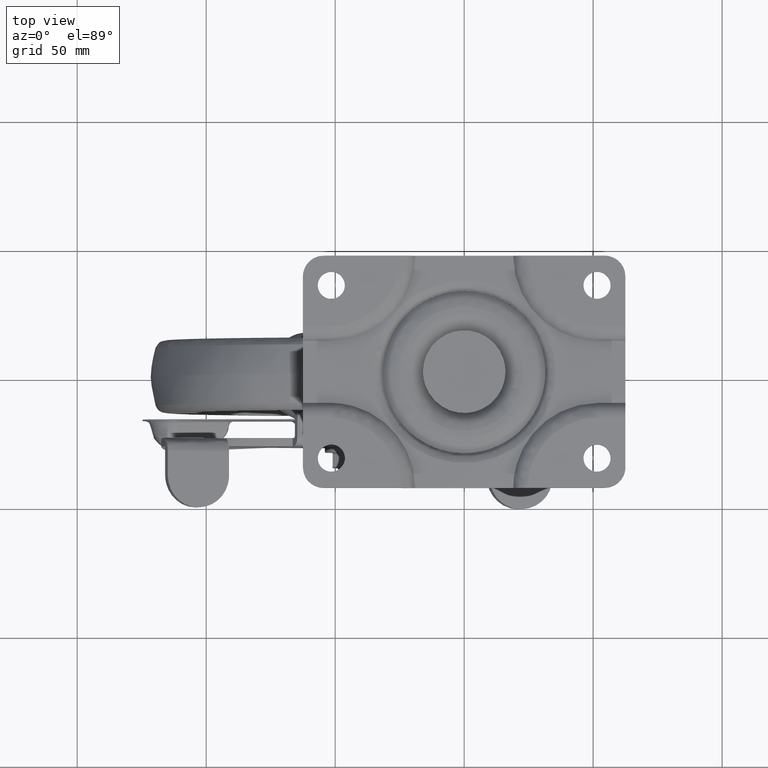
[diagram: clean part render]
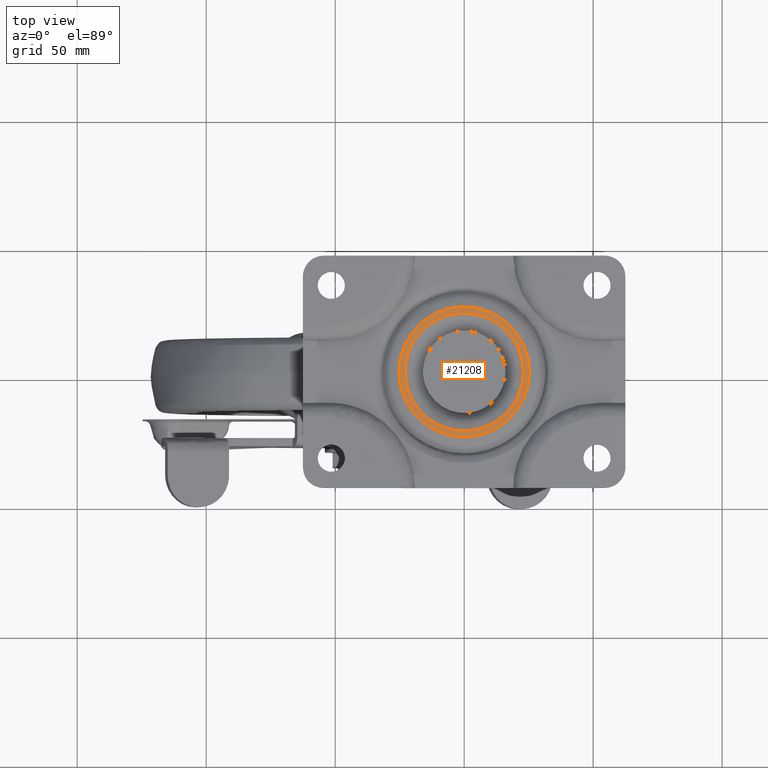
[diagram: same view with one face highlighted and labeled with its STEP entity id]
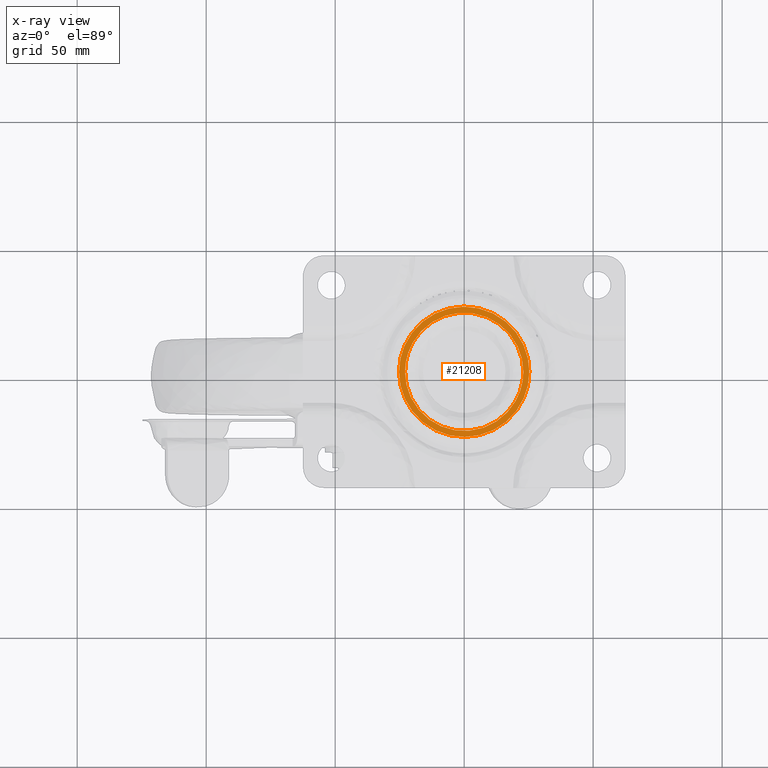
[diagram: x-ray of the same camera — body ghosted, the highlighted face saturated]
A machine part, top view. The second image highlights one B-rep face of the part: STEP entity #21208.
The next image is the same camera in x-ray: the body ghosted, the highlighted face saturated — about 0% of this face is hidden behind the body in this view.
In plain terms, the highlighted face is a freeform B-spline surface patch.
Its self-contained STEP definition (entity closure, byte-faithful):
#20891=CARTESIAN_POINT('',(-19.952071971651961,11.297352623015909,-4.000000000000002));
#20892=VERTEX_POINT('',#20891);
#20906=CARTESIAN_POINT('',(-22.928525230275600,0.0,-4.0));
#20907=VERTEX_POINT('',#20906);
#20908=CARTESIAN_POINT('',(-22.928525230275600,0.0,-4.0));
#20909=CARTESIAN_POINT('',(-22.928525228864320,6.040771445577980,-4.000000000000002));
#20910=CARTESIAN_POINT('',(-19.952071971651961,11.297352623015911,-4.000000000000002));
#20918=(BOUNDED_CURVE()B_SPLINE_CURVE(2,(#20908,#20909,#20910),.UNSPECIFIED.,.F.,.U.)B_SPLINE_CURVE_WITH_KNOTS((3,3),(0.0,0.083983638488254),.UNSPECIFIED.)CURVE()GEOMETRIC_REPRESENTATION_ITEM()RATIONAL_B_SPLINE_CURVE((1.0,0.901607047182039,0.869321279798122))REPRESENTATION_ITEM(''));
#20919=EDGE_CURVE('',#20907,#20892,#20918,.T.);
#20921=CARTESIAN_POINT('',(19.951427971651761,-11.297352623015909,-4.000000000000002));
#20922=VERTEX_POINT('',#20921);
#20923=CARTESIAN_POINT('',(19.951427971651761,-11.297352623015909,-4.000000000000002));
#20924=CARTESIAN_POINT('',(19.371963091589500,-12.320834616732011,-4.000000000000003));
#20925=CARTESIAN_POINT('',(18.011181796522209,-14.343590667266650,-4.000000000000001));
#20926=CARTESIAN_POINT('',(15.863417300361920,-16.643639983189740,-4.000000000000005));
#20927=CARTESIAN_POINT('',(13.384162495088781,-18.695529682762189,-4.000000000000003));
#20928=CARTESIAN_POINT('',(10.789694463954660,-20.333497120946429,-4.000000000000020));
#20929=CARTESIAN_POINT('',(7.544257862254762,-21.741111215291308,-3.999999999999954));
#20930=CARTESIAN_POINT('',(3.972839561524763,-22.693105677567299,-4.000000000000024));
#20931=CARTESIAN_POINT('',(0.130507202737579,-23.044527962597531,-3.999999999999986));
#20932=CARTESIAN_POINT('',(-3.867930248030917,-22.711056047736768,-3.999999999999917));
#20933=CARTESIAN_POINT('',(-7.221250555102231,-21.845914766306571,-4.000000000000139));
#20934=CARTESIAN_POINT('',(-10.336754621710041,-20.542924661220159,-3.999999999999738));
#20935=CARTESIAN_POINT('',(-12.712299355848950,-19.152717467568440,-4.000000000000213));
#20936=CARTESIAN_POINT('',(-15.144470857019639,-17.293771748425939,-4.000000000000056));
#20937=CARTESIAN_POINT('',(-17.502623584688600,-14.981073177153419,-4.000000000000142));
#20938=CARTESIAN_POINT('',(-19.808939229988351,-11.790034346312240,-3.999999999999945));
#20939=CARTESIAN_POINT('',(-21.439428967707109,-8.381999889951638,-4.000000000000011));
#20940=CARTESIAN_POINT('',(-22.617272973142232,-4.469089402424207,-3.999999999999994));
#20941=CARTESIAN_POINT('',(-22.928877011468479,-1.724995525595391,-4.000000000000003));
#20942=CARTESIAN_POINT('',(-22.928525230275600,0.0,-4.0));
#20943=B_SPLINE_CURVE_WITH_KNOTS('',3,(#20923,#20924,#20925,#20926,#20927,#20928,#20929,#20930,#20931,#20932,#20933,#20934,#20935,#20936,#20937,#20938,#20939,#20940,#20941,#20942),.UNSPECIFIED.,.F.,.U.,(4,1,1,1,1,1,1,1,1,1,1,1,1,1,1,1,1,4),(0.000000184919259,3.528413878851296,7.292063123346303,9.409110399192471,13.172767271831621,16.465998608854481,19.994439210724899,24.228370856683409,27.991963387158972,31.990922518235781,34.578411134005520,38.106843649264228,40.223899012229168,43.752322272876967,47.986475131609502,51.985372143616232,55.043348658796262,60.218242630327921),.UNSPECIFIED.);
#20944=EDGE_CURVE('',#20922,#20907,#20943,.T.);
#20987=CARTESIAN_POINT('',(22.927881230275400,0.0,-4.0));
#20988=VERTEX_POINT('',#20987);
#20989=CARTESIAN_POINT('',(22.927881230275400,0.0,-4.0));
#20990=CARTESIAN_POINT('',(22.927881228864123,-6.040771445577980,-4.000000000000002));
#20991=CARTESIAN_POINT('',(19.951427971651764,-11.297352623015911,-4.000000000000002));
#20999=(BOUNDED_CURVE()B_SPLINE_CURVE(2,(#20989,#20990,#20991),.UNSPECIFIED.,.F.,.U.)B_SPLINE_CURVE_WITH_KNOTS((3,3),(0.500000000000000,0.583983638488254),.UNSPECIFIED.)CURVE()GEOMETRIC_REPRESENTATION_ITEM()RATIONAL_B_SPLINE_CURVE((1.0,0.901607047182039,0.869321279798122))REPRESENTATION_ITEM(''));
#21000=EDGE_CURVE('',#20988,#20922,#20999,.T.);
#21002=CARTESIAN_POINT('',(-19.952071971651961,11.297352623015909,-4.000000000000002));
#21003=CARTESIAN_POINT('',(-19.411238862370201,12.252594948511961,-4.0));
#21004=CARTESIAN_POINT('',(-18.191994218421460,14.085175022926469,-4.000000000000011));
#21005=CARTESIAN_POINT('',(-15.936146066683170,16.602633432867879,-3.999999999999991));
#21006=CARTESIAN_POINT('',(-13.512768687712891,18.608253558170460,-4.000000000000018));
#21007=CARTESIAN_POINT('',(-10.847893610299099,20.271568922481379,-4.000000000000010));
#21008=CARTESIAN_POINT('',(-8.346682258911068,21.417947720213181,-3.999999999999942));
#21009=CARTESIAN_POINT('',(-5.427537803778515,22.342254464632600,-4.000000000000008));
#21010=CARTESIAN_POINT('',(-2.718830172578265,22.830689421794929,-4.000000000000095));
#21011=CARTESIAN_POINT('',(0.339215957503038,22.984224143819809,-3.999999999999888));
#21012=CARTESIAN_POINT('',(3.240042195377568,22.772257154175549,-4.000000000000112));
#21013=CARTESIAN_POINT('',(6.774432683289231,22.013762232668491,-3.999999999999938));
#21014=CARTESIAN_POINT('',(9.852613135287545,20.800006306703839,-4.000000000000083));
#21015=CARTESIAN_POINT('',(12.775036767857610,19.109663282373500,-3.999999999999944));
#21016=CARTESIAN_POINT('',(15.095037430000740,17.355311803997392,-4.000000000000142));
#21017=CARTESIAN_POINT('',(17.594216007526761,14.853403354829551,-3.999999999999962));
#21018=CARTESIAN_POINT('',(19.715963760435478,11.917659429676499,-4.000000000000008));
#21019=CARTESIAN_POINT('',(21.622921908229639,8.035322849954040,-4.000000000000004));
#21020=CARTESIAN_POINT('',(22.704482062112181,4.077255970182469,-3.999999999999993));
#21021=CARTESIAN_POINT('',(22.927883384218621,1.176075547076151,-4.000000000000002));
#21022=CARTESIAN_POINT('',(22.927881230275400,0.0,-4.0));
#21023=B_SPLINE_CURVE_WITH_KNOTS('',3,(#21002,#21003,#21004,#21005,#21006,#21007,#21008,#21009,#21010,#21011,#21012,#21013,#21014,#21015,#21016,#21017,#21018,#21019,#21020,#21021,#21022),.UNSPECIFIED.,.F.,.U.,(4,1,1,1,1,1,1,1,1,1,1,1,1,1,1,1,1,1,4),(0.000000184922357,3.293167758997257,6.586377298015975,10.114826378563681,12.702353342532380,15.995501121155851,18.347854094760422,21.876220706560382,24.228370856683039,27.521474727373519,30.579501164308969,35.048825294830529,37.401125539888611,40.694347480594807,43.752322272876711,47.986475131609247,51.514906882301517,56.689959138460793,60.218242630327907),.UNSPECIFIED.);
#21024=EDGE_CURVE('',#20892,#20988,#21023,.T.);
#21056=CARTESIAN_POINT('',(20.051907107297101,15.353280885272479,-4.000000000000002));
#21057=VERTEX_POINT('',#21056);
#21071=CARTESIAN_POINT('',(25.254680001601500,0.0,-4.0));
#21072=VERTEX_POINT('',#21071);
#21073=CARTESIAN_POINT('',(25.254680001601500,0.0,-4.0));
#21074=CARTESIAN_POINT('',(25.254680001701395,8.558173386452266,-4.000000000000001));
#21075=CARTESIAN_POINT('',(20.051907107297097,15.353280885272477,-4.000000000000002));
#21083=(BOUNDED_CURVE()B_SPLINE_CURVE(2,(#21073,#21074,#21075),.UNSPECIFIED.,.F.,.U.)B_SPLINE_CURVE_WITH_KNOTS((3,3),(0.500000000000000,0.605061816222617),.UNSPECIFIED.)CURVE()GEOMETRIC_REPRESENTATION_ITEM()RATIONAL_B_SPLINE_CURVE((1.0,0.876912425888681,0.857279284501931))REPRESENTATION_ITEM(''));
#21084=EDGE_CURVE('',#21072,#21057,#21083,.T.);
#21086=CARTESIAN_POINT('',(-20.052551107297290,-15.353280885272470,-4.000000000000002));
#21087=VERTEX_POINT('',#21086);
#21088=CARTESIAN_POINT('',(-20.052551107297290,-15.353280885272470,-4.000000000000002));
#21089=CARTESIAN_POINT('',(-19.405934937973392,-16.197832224541280,-4.000000000000001));
#21090=CARTESIAN_POINT('',(-17.844249815603039,-17.990531309258760,-4.0));
#21091=CARTESIAN_POINT('',(-14.617107036720340,-20.783052805599141,-4.000000000000011));
#21092=CARTESIAN_POINT('',(-10.767054303047560,-23.006364381905470,-4.000000000000001));
#21093=CARTESIAN_POINT('',(-6.279574880165922,-24.588811261389409,-3.999999999999985));
#21094=CARTESIAN_POINT('',(-2.227838442808972,-25.279925454368279,-4.000000000000010));
#21095=CARTESIAN_POINT('',(2.530410948165040,-25.274746796824150,-3.999999999999962));
#21096=CARTESIAN_POINT('',(7.061571145702172,-24.423071729111140,-4.000000000000100));
#21097=CARTESIAN_POINT('',(11.172043028871389,-22.756958286975401,-3.999999999999963));
#21098=CARTESIAN_POINT('',(14.203476864727890,-20.957437492553009,-4.000000000000007));
#21099=CARTESIAN_POINT('',(16.604365646550459,-19.104899429123069,-4.000000000000002));
#21100=CARTESIAN_POINT('',(19.183894029672810,-16.584718796302631,-4.000000000000001));
#21101=CARTESIAN_POINT('',(21.299059168286181,-13.752492057297580,-3.999999999999999));
#21102=CARTESIAN_POINT('',(23.346105285489699,-9.922435109658419,-4.000000000000001));
#21103=CARTESIAN_POINT('',(24.841328518958878,-5.563648233648174,-4.000000000000002));
#21104=CARTESIAN_POINT('',(25.255020095951210,-1.881851856066686,-3.999999999999999));
#21105=CARTESIAN_POINT('',(25.254680001601500,0.0,-4.0));
#21106=B_SPLINE_CURVE_WITH_KNOTS('',3,(#21088,#21089,#21090,#21091,#21092,#21093,#21094,#21095,#21096,#21097,#21098,#21099,#21100,#21101,#21102,#21103,#21104,#21105),.UNSPECIFIED.,.F.,.U.,(4,1,1,1,1,1,1,1,1,1,1,1,1,1,1,4),(0.000000151914428,3.191006474571871,7.118409970425788,12.764109047326150,16.446006916969960,21.355301030202789,25.036995893123720,30.682704375500609,35.101000169291950,38.292029742750579,41.237605654432279,44.183167297748270,49.092433470608199,51.792531713023443,57.192745865040287,62.838262897923023),.UNSPECIFIED.);
#21107=EDGE_CURVE('',#21087,#21072,#21106,.T.);
#21150=CARTESIAN_POINT('',(-25.255324001601700,0.0,-4.0));
#21151=VERTEX_POINT('',#21150);
#21152=CARTESIAN_POINT('',(-25.255324001601700,0.0,-4.0));
#21153=CARTESIAN_POINT('',(-25.255324001701581,-8.558173386452260,-4.000000000000001));
#21154=CARTESIAN_POINT('',(-20.052551107297298,-15.353280885272465,-4.000000000000002));
#21162=(BOUNDED_CURVE()B_SPLINE_CURVE(2,(#21152,#21153,#21154),.UNSPECIFIED.,.F.,.U.)B_SPLINE_CURVE_WITH_KNOTS((3,3),(0.0,0.105061816222617),.UNSPECIFIED.)CURVE()GEOMETRIC_REPRESENTATION_ITEM()RATIONAL_B_SPLINE_CURVE((1.0,0.876912425888681,0.857279284501931))REPRESENTATION_ITEM(''));
#21163=EDGE_CURVE('',#21151,#21087,#21162,.T.);
#21165=CARTESIAN_POINT('',(20.051907107297101,15.353280885272479,-4.000000000000002));
#21166=CARTESIAN_POINT('',(19.405290786799888,16.197832583736819,-4.000000000000005));
#21167=CARTESIAN_POINT('',(17.843612444267460,17.990540932635799,-3.999999999999995));
#21168=CARTESIAN_POINT('',(14.616442923649160,20.783018053733969,-4.000000000000008));
#21169=CARTESIAN_POINT('',(10.766424927209179,23.006403023842370,-3.999999999999993));
#21170=CARTESIAN_POINT('',(6.278933405910520,24.588775278180840,-3.999999999999964));
#21171=CARTESIAN_POINT('',(1.903031859801641,25.335357306117341,-4.000000000000023));
#21172=CARTESIAN_POINT('',(-1.958080858726100,25.255786205381639,-3.999999999999997));
#21173=CARTESIAN_POINT('',(-5.843255517043840,24.661625426689540,-3.999999999999992));
#21174=CARTESIAN_POINT('',(-9.229452701847775,23.641150819854939,-3.999999999999950));
#21175=CARTESIAN_POINT('',(-12.898539053969460,21.810249632921749,-4.000000000000003));
#21176=CARTESIAN_POINT('',(-16.275507341654709,19.481729873255311,-4.000000000000009));
#21177=CARTESIAN_POINT('',(-19.378523589069800,16.420172326751469,-3.999999999999888));
#21178=CARTESIAN_POINT('',(-21.674567596562611,13.116804259284971,-4.000000000000036));
#21179=CARTESIAN_POINT('',(-23.274471667568850,9.977718882251514,-3.999999999999987));
#21180=CARTESIAN_POINT('',(-24.773336003878960,5.808866839226694,-4.000000000000010));
#21181=CARTESIAN_POINT('',(-25.255999005291031,2.291042002257968,-3.999999999999995));
#21182=CARTESIAN_POINT('',(-25.255324001601700,0.0,-4.0));
#21183=B_SPLINE_CURVE_WITH_KNOTS('',3,(#21165,#21166,#21167,#21168,#21169,#21170,#21171,#21172,#21173,#21174,#21175,#21176,#21177,#21178,#21179,#21180,#21181,#21182),.UNSPECIFIED.,.F.,.U.,(4,1,1,1,1,1,1,1,1,1,1,1,1,1,1,4),(0.000000151911721,3.191006474569925,7.118409970424239,12.764109047325030,16.446006916969079,21.355301030202462,26.018812086503051,27.982652017807119,33.137339387517017,36.573818043513469,40.255765741701509,45.410486395707707,49.583381698370403,52.283485428971822,55.965349529307261,62.838262897923023),.UNSPECIFIED.);
#21184=EDGE_CURVE('',#21057,#21151,#21183,.T.);
#21191=CARTESIAN_POINT('',(-27.778298603663501,27.777626761505381,-4.0));
#21192=CARTESIAN_POINT('',(27.777655958447198,27.777626761505381,-4.0));
#21193=CARTESIAN_POINT('',(-27.778298603663501,-27.777627663718629,-4.0));
#21194=CARTESIAN_POINT('',(27.777655958447198,-27.777627663718619,-4.0));
#21195=B_SPLINE_SURFACE_WITH_KNOTS('',1,1,((#21191,#21193),(#21192,#21194)),.UNSPECIFIED.,.F.,.F.,.U.,(2,2),(2,2),(0.0,55.555954562110699),(0.0,55.555254425224007),.UNSPECIFIED.);
#21196=ORIENTED_EDGE('',*,*,#21163,.T.);
#21197=ORIENTED_EDGE('',*,*,#21107,.T.);
#21198=ORIENTED_EDGE('',*,*,#21084,.T.);
#21199=ORIENTED_EDGE('',*,*,#21184,.T.);
#21200=EDGE_LOOP('',(#21196,#21197,#21198,#21199));
#21201=FACE_OUTER_BOUND('',#21200,.T.);
#21202=ORIENTED_EDGE('',*,*,#20919,.T.);
#21203=ORIENTED_EDGE('',*,*,#21024,.T.);
#21204=ORIENTED_EDGE('',*,*,#21000,.T.);
#21205=ORIENTED_EDGE('',*,*,#20944,.T.);
#21206=EDGE_LOOP('',(#21202,#21203,#21204,#21205));
#21207=FACE_BOUND('',#21206,.T.);
#21208=ADVANCED_FACE('',(#21201,#21207),#21195,.F.);